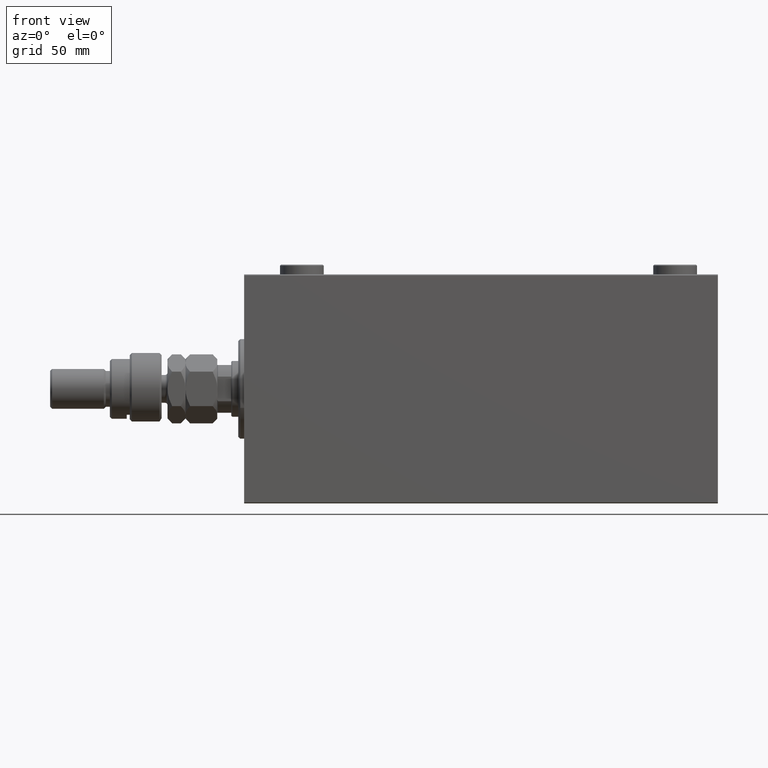
[diagram: clean part render]
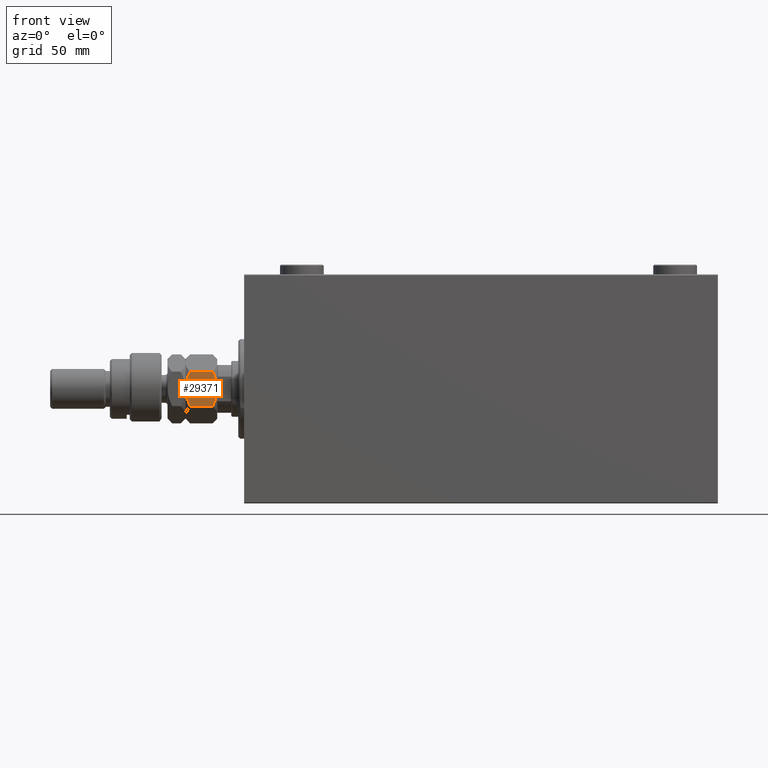
[diagram: same view with one face highlighted and labeled with its STEP entity id]
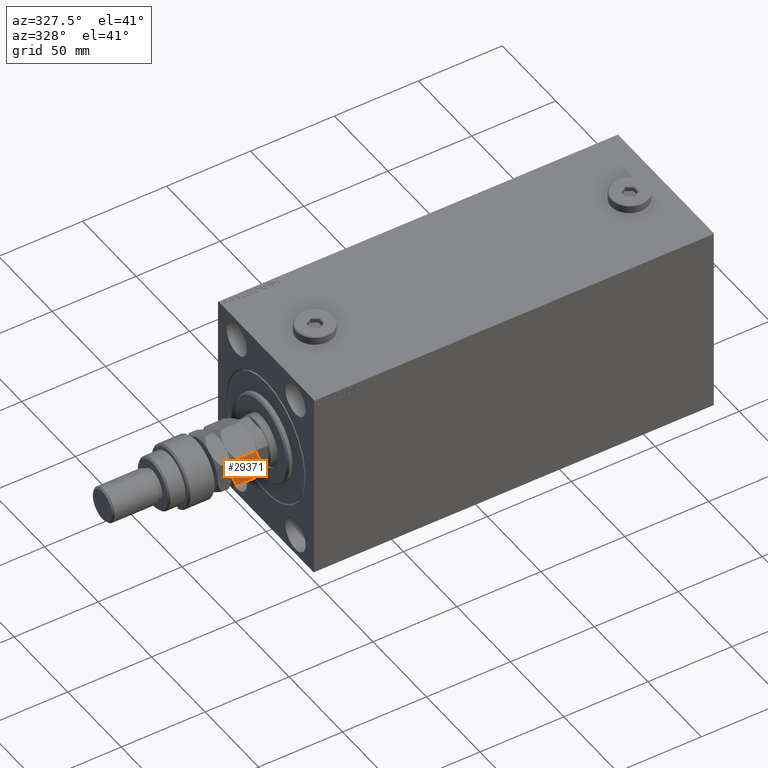
[diagram: same view with one face highlighted and labeled with its STEP entity id]
A machine part, front view. The second image highlights one B-rep face of the part: STEP entity #29371.
A second angle (auxiliary view) of the same face is appended — the face is thin or edge-on in the first view.
In plain terms, the highlighted planar face has unit normal (0, 1, -0).
Its self-contained STEP definition (entity closure, byte-faithful):
#306 = VERTEX_POINT ( 'NONE', #7044 ) ;
#383 = CARTESIAN_POINT ( 'NONE',  ( 2.378834511187501111, -15.94708733029709791, 14.93551393225600066 ) ) ;
#618 = CARTESIAN_POINT ( 'NONE',  ( 15.00000000000000000, -8.660254037844389075, 2.320508075688767047 ) ) ;
#1378 = VECTOR ( 'NONE', #44140, 1000.000000000000000 ) ;
#1633 = CARTESIAN_POINT ( 'NONE',  ( 2.383929548160349299, -15.94414570932928576, 1.060479031370876957 ) ) ;
#2274 = FACE_OUTER_BOUND ( 'NONE', #9236, .T. ) ;
#3532 = VERTEX_POINT ( 'NONE', #4292 ) ;
#3962 = PLANE ( 'NONE',  #10678 ) ;
#4026 = ORIENTED_EDGE ( 'NONE', *, *, #4959, .F. ) ;
#4292 = CARTESIAN_POINT ( 'NONE',  ( 7.499999999999994671, -12.99038105676658184, 0.000000000000000000 ) ) ;
#4564 = CARTESIAN_POINT ( 'NONE',  ( -2.796947266322166691E-15, -17.32050807568877104, 2.320508075688761718 ) ) ;
#4959 = EDGE_CURVE ( 'NONE', #35412, #31530, #30599, .T. ) ;
#6404 = VERTEX_POINT ( 'NONE', #26122 ) ;
#7044 = CARTESIAN_POINT ( 'NONE',  ( -3.416099238086855886E-15, -17.32050807568877104, 13.67949192431124317 ) ) ;
#7050 = EDGE_CURVE ( 'NONE', #14348, #3532, #28080, .T. ) ;
#8638 = CARTESIAN_POINT ( 'NONE',  ( 15.00000000000000000, -8.660254037844389075, 13.67949192431123961 ) ) ;
#9236 = EDGE_LOOP ( 'NONE', ( #19865, #31703, #4026, #34156, #22835, #45004 ) ) ;
#10678 = AXIS2_PLACEMENT_3D ( 'NONE', #48043, #14666, #18801 ) ;
#11330 = CARTESIAN_POINT ( 'NONE',  ( 10.11832554202262102, -11.47869010025374870, 0.2838026619462938327 ) ) ;
#13009 = CARTESIAN_POINT ( 'NONE',  ( -3.035766082959412415E-15, -17.32050807568877104, 16.00000000000000000 ) ) ;
#13928 = CARTESIAN_POINT ( 'NONE',  ( 8.804550678576907430, -12.23719837131869248, 16.00000000000000000 ) ) ;
#14348 = VERTEX_POINT ( 'NONE', #37067 ) ;
#14648 = CARTESIAN_POINT ( 'NONE',  ( 12.61607045183964360, -10.03661640420387080, 14.93952096862912171 ) ) ;
#14666 = DIRECTION ( 'NONE',  ( -0.4999999999999996669, 0.8660254037844388186, 0.000000000000000000 ) ) ;
#15227 = CARTESIAN_POINT ( 'NONE',  ( 6.843123817691747490, -13.36962869744650284, 16.00000000000000711 ) ) ;
#15232 = CARTESIAN_POINT ( 'NONE',  ( 7.499999999999994671, -12.99038105676658184, 0.000000000000000000 ) ) ;
#15273 = CARTESIAN_POINT ( 'NONE',  ( 7.499999999999993783, -12.99038105676658006, 16.00000000000000000 ) ) ;
#15688 = CARTESIAN_POINT ( 'NONE',  ( 6.176419610670694560, -13.75455055083996214, 15.94046462602530312 ) ) ;
#17809 = CARTESIAN_POINT ( 'NONE',  ( 7.499999999999993783, -12.99038105676658006, 16.00000000000000000 ) ) ;
#18801 = DIRECTION ( 'NONE',  ( -0.8660254037844388186, -0.4999999999999996669, 0.000000000000000000 ) ) ;
#19865 = ORIENTED_EDGE ( 'NONE', *, *, #7050, .F. ) ;
#22825 = CARTESIAN_POINT ( 'NONE',  ( 4.913081180497406386, -14.48393933357810681, 0.2303299219392160313 ) ) ;
#22835 = ORIENTED_EDGE ( 'NONE', *, *, #26153, .T. ) ;
#23243 = CARTESIAN_POINT ( 'NONE',  ( 8.823580389329300999, -12.22621156269320331, 0.05953537397470176629 ) ) ;
#23292 = CARTESIAN_POINT ( 'NONE',  ( 1.174746544192159625, -16.64226784216984711, 1.642267842169777836 ) ) ;
#23473 = CARTESIAN_POINT ( 'NONE',  ( 1.176108425306638505, -16.64148155974179488, 14.35851844025821755 ) ) ;
#23480 = CARTESIAN_POINT ( 'NONE',  ( 12.62116548881249756, -10.03367478323606754, 1.064486067744006892 ) ) ;
#26122 = CARTESIAN_POINT ( 'NONE',  ( -2.796947266322166691E-15, -17.32050807568877104, 2.320508075688761718 ) ) ;
#26153 = EDGE_CURVE ( 'NONE', #306, #6404, #27857, .T. ) ;
#27857 = LINE ( 'NONE', #13009, #34051 ) ;
#28080 = B_SPLINE_CURVE_WITH_KNOTS ( 'NONE', 3,
 ( #618, #33741, #23480, #30307, #11330, #23243, #45179, #15232 ),
 .UNSPECIFIED., .F., .F.,
 ( 4, 2, 2, 4 ),
 ( 2.544309033642853415E-07, 0.004488823491893907842, 0.006733108022389181456, 0.008977392552884455937 ),
 .UNSPECIFIED. ) ;
#29371 = ADVANCED_FACE ( 'NONE', ( #2274 ), #3962, .F. ) ;
#29459 = EDGE_CURVE ( 'NONE', #31530, #14348, #33427, .T. ) ;
#30070 = CARTESIAN_POINT ( 'NONE',  ( 7.499999999999993783, -12.99038105676658006, 16.00000000000000000 ) ) ;
#30307 = CARTESIAN_POINT ( 'NONE',  ( 10.75222765045651308, -11.11270654730956586, 0.4475714085130263475 ) ) ;
#30599 = B_SPLINE_CURVE_WITH_KNOTS ( 'NONE', 3,
 ( #17809, #13928, #32679, #14648, #43884, #40230 ),
 .UNSPECIFIED., .F., .F.,
 ( 4, 2, 4 ),
 ( 0.008977392552884447263, 0.01343452311421656532, 0.01789165367554868338 ),
 .UNSPECIFIED. ) ;
#30787 = CARTESIAN_POINT ( 'NONE',  ( -3.416099238086855886E-15, -17.32050807568877104, 13.67949192431124317 ) ) ;
#31271 = EDGE_CURVE ( 'NONE', #3532, #6404, #37214, .T. ) ;
#31329 = CARTESIAN_POINT ( 'NONE',  ( 7.499999999999994671, -12.99038105676658184, 0.000000000000000000 ) ) ;
#31530 = VERTEX_POINT ( 'NONE', #8638 ) ;
#31703 = ORIENTED_EDGE ( 'NONE', *, *, #29459, .F. ) ;
#32679 = CARTESIAN_POINT ( 'NONE',  ( 10.08691881950258917, -11.49682277995505331, 15.76967007806078591 ) ) ;
#33427 = LINE ( 'NONE', #43668, #1378 ) ;
#33741 = CARTESIAN_POINT ( 'NONE',  ( 13.82389157469335750, -9.339280553791367012, 1.641481559741792884 ) ) ;
#33973 = CARTESIAN_POINT ( 'NONE',  ( 4.247772349543483372, -14.86805556622359425, 15.55242859148698109 ) ) ;
#34051 = VECTOR ( 'NONE', #42973, 1000.000000000000000 ) ;
#34156 = ORIENTED_EDGE ( 'NONE', *, *, #46007, .F. ) ;
#34267 = CARTESIAN_POINT ( 'NONE',  ( 6.195449321423083688, -13.74356374221447119, -1.770863548392988866E-15 ) ) ;
#35345 = B_SPLINE_CURVE_WITH_KNOTS ( 'NONE', 3,
 ( #30787, #23473, #383, #33973, #38336, #15688, #15227, #30070 ),
 .UNSPECIFIED., .F., .F.,
 ( 4, 2, 2, 4 ),
 ( 2.544309033646407248E-07, 0.004488823491893905240, 0.006733108022389175384, 0.008977392552884447263 ),
 .UNSPECIFIED. ) ;
#35412 = VERTEX_POINT ( 'NONE', #15273 ) ;
#37067 = CARTESIAN_POINT ( 'NONE',  ( 15.00000000000000000, -8.660254037844389075, 2.320508075688767047 ) ) ;
#37214 = B_SPLINE_CURVE_WITH_KNOTS ( 'NONE', 3,
 ( #31329, #34267, #22825, #1633, #23292, #4564 ),
 .UNSPECIFIED., .F., .F.,
 ( 4, 2, 4 ),
 ( 0.008977392552884455937, 0.01343452311421657053, 0.01789165367554868685 ),
 .UNSPECIFIED. ) ;
#38336 = CARTESIAN_POINT ( 'NONE',  ( 4.881674457977372761, -14.50207201327941320, 15.71619733805371411 ) ) ;
#40230 = CARTESIAN_POINT ( 'NONE',  ( 15.00000000000000000, -8.660254037844389075, 13.67949192431123961 ) ) ;
#42973 = DIRECTION ( 'NONE',  ( -0.000000000000000000, -0.000000000000000000, -1.000000000000000000 ) ) ;
#43668 = CARTESIAN_POINT ( 'NONE',  ( 15.00000000000000000, -8.660254037844389075, 16.00000000000000000 ) ) ;
#43884 = CARTESIAN_POINT ( 'NONE',  ( 13.82525345580783416, -9.338494271363316557, 14.35773215783021861 ) ) ;
#44140 = DIRECTION ( 'NONE',  ( -0.000000000000000000, -0.000000000000000000, -1.000000000000000000 ) ) ;
#45004 = ORIENTED_EDGE ( 'NONE', *, *, #31271, .F. ) ;
#45179 = CARTESIAN_POINT ( 'NONE',  ( 8.156876182308243628, -12.61113341608666083, -1.722865014715246890E-15 ) ) ;
#46007 = EDGE_CURVE ( 'NONE', #306, #35412, #35345, .T. ) ;
#48043 = CARTESIAN_POINT ( 'NONE',  ( -3.035766082959412415E-15, -17.32050807568877104, 16.00000000000000000 ) ) ;